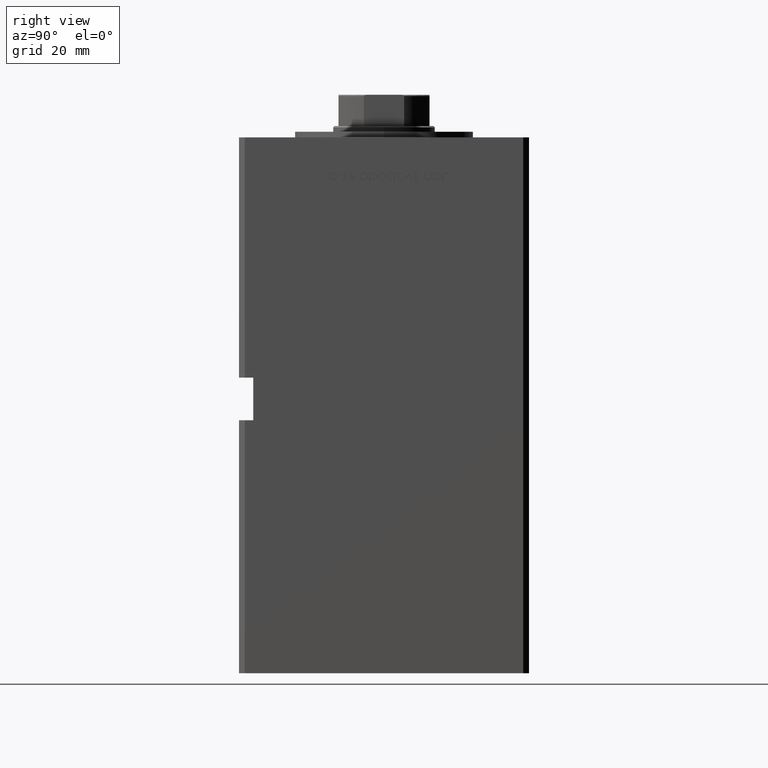
[diagram: clean part render]
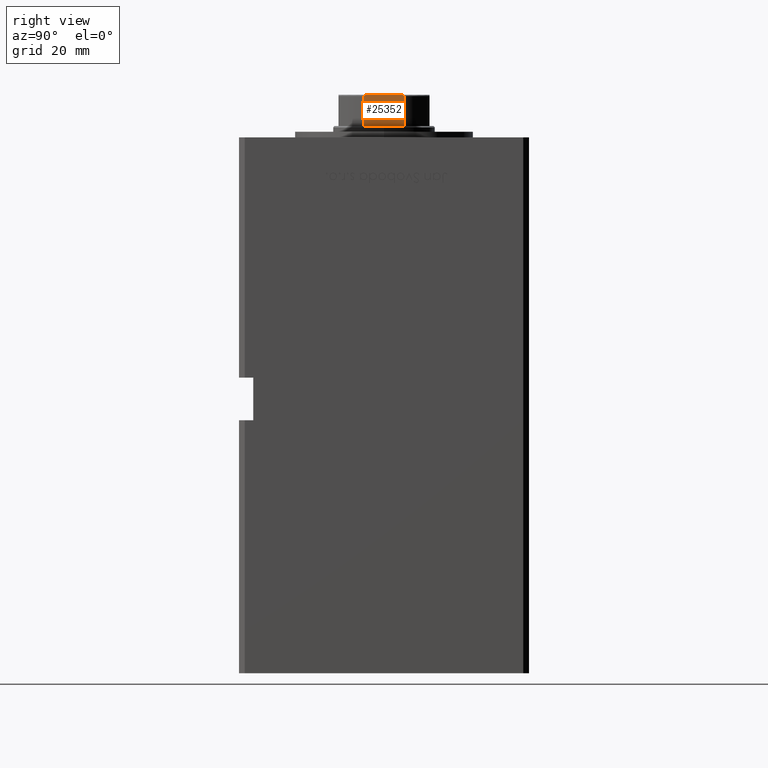
[diagram: same view with one face highlighted and labeled with its STEP entity id]
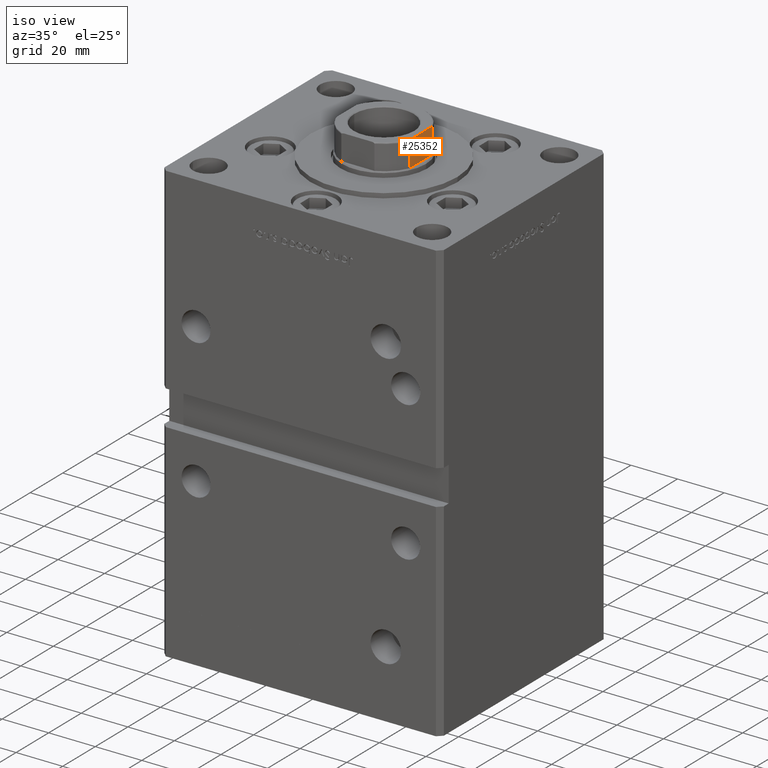
[diagram: same view with one face highlighted and labeled with its STEP entity id]
A machine part, right view. The second image highlights one B-rep face of the part: STEP entity #25352.
A second angle (iso view) of the same face is appended — the face is thin or edge-on in the first view.
In plain terms, the highlighted planar face has unit normal (-1, -0, 0).
Its self-contained STEP definition (entity closure, byte-faithful):
#444 = CARTESIAN_POINT ( 'NONE',  ( 16.00000000000000000, 16.00000000000000000, 169.2500000000000000 ) ) ;
#913 = CARTESIAN_POINT ( 'NONE',  ( 15.99999999999999645, 6.623467753754349374, 169.1410978819201318 ) ) ;
#1323 = CARTESIAN_POINT ( 'NONE',  ( 16.00000000000000355, -6.967626683430014012, 168.9712986014228591 ) ) ;
#1441 = CARTESIAN_POINT ( 'NONE',  ( 16.00000000000000000, 7.088723439378916247, 168.8153596029795551 ) ) ;
#1583 = CARTESIAN_POINT ( 'NONE',  ( 16.00000000000000355, -6.620608993398004571, 169.1419184437073113 ) ) ;
#1762 = EDGE_CURVE ( 'NONE', #50678, #18833, #29376, .T. ) ;
#4973 = EDGE_CURVE ( 'NONE', #14268, #44198, #51416, .T. ) ;
#5981 = CARTESIAN_POINT ( 'NONE',  ( 16.00000000000000000, 6.746962372739933045, 169.1011068297690088 ) ) ;
#5984 = CARTESIAN_POINT ( 'NONE',  ( 16.00000000000000000, 7.088723439378916247, 168.7500000000000000 ) ) ;
#7302 = DIRECTION ( 'NONE',  ( -0.000000000000000000, -0.000000000000000000, 1.000000000000000000 ) ) ;
#8485 = DIRECTION ( 'NONE',  ( -1.000000000000000000, -1.084202172485504557E-16, 0.000000000000000000 ) ) ;
#8768 = DIRECTION ( 'NONE',  ( -1.084202172485504434E-16, 1.000000000000000000, -0.000000000000000000 ) ) ;
#9163 = EDGE_CURVE ( 'NONE', #50678, #44198, #11385, .T. ) ;
#9900 = CARTESIAN_POINT ( 'NONE',  ( 15.99999999999999645, -5.999698100840000770, 169.2500000000000000 ) ) ;
#10431 = CARTESIAN_POINT ( 'NONE',  ( 16.00000000000000355, -6.744478600285194858, 169.1022542963852970 ) ) ;
#11385 = LINE ( 'NONE', #35525, #29125 ) ;
#11609 = VECTOR ( 'NONE', #7302, 1000.000000000000000 ) ;
#12503 = DIRECTION ( 'NONE',  ( 1.084202172485504557E-16, -1.000000000000000000, 0.000000000000000000 ) ) ;
#13213 = AXIS2_PLACEMENT_3D ( 'NONE', #444, #8485, #12503 ) ;
#14268 = VERTEX_POINT ( 'NONE', #44829 ) ;
#14911 = VERTEX_POINT ( 'NONE', #5984 ) ;
#15286 = LINE ( 'NONE', #43979, #37520 ) ;
#17775 = CARTESIAN_POINT ( 'NONE',  ( 16.00000000000000000, 7.055665994487715587, 168.8756422470904397 ) ) ;
#18304 = CARTESIAN_POINT ( 'NONE',  ( 16.00000000000000000, 5.744562646538033945, 169.2500000000000000 ) ) ;
#18450 = CARTESIAN_POINT ( 'NONE',  ( 16.00000000000000000, -6.251780714621279600, 169.2305079891187347 ) ) ;
#18833 = VERTEX_POINT ( 'NONE', #26029 ) ;
#19093 = LINE ( 'NONE', #52082, #11609 ) ;
#21940 = EDGE_LOOP ( 'NONE', ( #42662, #23522, #39588, #40915, #37420, #31175 ) ) ;
#22157 = CARTESIAN_POINT ( 'NONE',  ( 15.99999999999999645, -7.088723439378925129, 158.2500000000000284 ) ) ;
#22317 = CARTESIAN_POINT ( 'NONE',  ( 16.00000000000000000, 6.252433022027813259, 169.2306157152108312 ) ) ;
#22679 = EDGE_CURVE ( 'NONE', #14911, #31386, #44378, .T. ) ;
#23522 = ORIENTED_EDGE ( 'NONE', *, *, #4973, .T. ) ;
#24012 = PLANE ( 'NONE',  #13213 ) ;
#24104 = CARTESIAN_POINT ( 'NONE',  ( 15.99999999999999645, -7.088723439378925129, 168.7500000000000000 ) ) ;
#25047 = CARTESIAN_POINT ( 'NONE',  ( 16.00000000000000000, 5.744562646538033945, 169.2500000000000000 ) ) ;
#25352 = ADVANCED_FACE ( 'NONE', ( #27767 ), #24012, .F. ) ;
#26029 = CARTESIAN_POINT ( 'NONE',  ( 16.00000000000000000, 7.088723439378916247, 158.2500000000000284 ) ) ;
#27599 = DIRECTION ( 'NONE',  ( -1.084202172485504434E-16, 1.000000000000000000, -0.000000000000000000 ) ) ;
#27767 = FACE_OUTER_BOUND ( 'NONE', #21940, .T. ) ;
#29125 = VECTOR ( 'NONE', #40319, 1000.000000000000000 ) ;
#29376 = LINE ( 'NONE', #29636, #51850 ) ;
#29489 = EDGE_CURVE ( 'NONE', #18833, #14911, #19093, .T. ) ;
#29636 = CARTESIAN_POINT ( 'NONE',  ( 16.00000000000000000, 16.00000000000000000, 158.2500000000000000 ) ) ;
#31175 = ORIENTED_EDGE ( 'NONE', *, *, #22679, .T. ) ;
#31386 = VERTEX_POINT ( 'NONE', #25047 ) ;
#33777 = CARTESIAN_POINT ( 'NONE',  ( 16.00000000000000355, -7.088723439378910918, 168.8155697653146774 ) ) ;
#33888 = CARTESIAN_POINT ( 'NONE',  ( 16.00000000000000000, 7.088723439378916247, 168.7500000000000000 ) ) ;
#34032 = CARTESIAN_POINT ( 'NONE',  ( 16.00000000000000355, -5.744562646538033057, 169.2500000000000000 ) ) ;
#34829 = CARTESIAN_POINT ( 'NONE',  ( 16.00000000000000355, -6.914158745692618346, 169.0081288012991649 ) ) ;
#35525 = CARTESIAN_POINT ( 'NONE',  ( 15.99999999999999645, -7.088723439378925129, -0.001000000000001000089 ) ) ;
#37420 = ORIENTED_EDGE ( 'NONE', *, *, #29489, .T. ) ;
#37520 = VECTOR ( 'NONE', #27599, 1000.000000000000000 ) ;
#37637 = CARTESIAN_POINT ( 'NONE',  ( 16.00000000000000000, 6.968475375953128825, 168.9705009019615147 ) ) ;
#38700 = CARTESIAN_POINT ( 'NONE',  ( 15.99999999999999645, 5.999773414835116725, 169.2499999999999432 ) ) ;
#39588 = ORIENTED_EDGE ( 'NONE', *, *, #9163, .F. ) ;
#40319 = DIRECTION ( 'NONE',  ( -0.000000000000000000, -0.000000000000000000, 1.000000000000000000 ) ) ;
#40915 = ORIENTED_EDGE ( 'NONE', *, *, #1762, .T. ) ;
#42455 = CARTESIAN_POINT ( 'NONE',  ( 16.00000000000000355, 6.914772706552266612, 169.0076711345670901 ) ) ;
#42662 = ORIENTED_EDGE ( 'NONE', *, *, #45242, .F. ) ;
#43979 = CARTESIAN_POINT ( 'NONE',  ( 16.00000000000000000, 16.00000000000000000, 169.2500000000000000 ) ) ;
#44198 = VERTEX_POINT ( 'NONE', #24104 ) ;
#44378 = B_SPLINE_CURVE_WITH_KNOTS ( 'NONE', 3,
 ( #33888, #1441, #17775, #37637, #42455, #5981, #913, #22317, #38700, #18304 ),
 .UNSPECIFIED., .F., .F.,
 ( 4, 2, 2, 2, 4 ),
 ( 0.000000000000000000, 0.0001928955851489644411, 0.0003857911702979288822, 0.0007715823405958169984, 0.001543164681191573715 ),
 .UNSPECIFIED. ) ;
#44829 = CARTESIAN_POINT ( 'NONE',  ( 16.00000000000000355, -5.744562646538033057, 169.2500000000000000 ) ) ;
#45242 = EDGE_CURVE ( 'NONE', #14268, #31386, #15286, .T. ) ;
#46894 = CARTESIAN_POINT ( 'NONE',  ( 15.99999999999999645, -7.088723439378925129, 168.7500000000000000 ) ) ;
#50646 = CARTESIAN_POINT ( 'NONE',  ( 16.00000000000000355, -7.055793701721079891, 168.8756279161197824 ) ) ;
#50678 = VERTEX_POINT ( 'NONE', #22157 ) ;
#51416 = B_SPLINE_CURVE_WITH_KNOTS ( 'NONE', 3,
 ( #34032, #9900, #18450, #1583, #10431, #34829, #1323, #50646, #33777, #46894 ),
 .UNSPECIFIED., .F., .F.,
 ( 4, 2, 2, 2, 4 ),
 ( 8.673617379884035472E-19, 0.0007561879621635830351, 0.001134281943245383931, 0.001323328933786263508, 0.001512375924327143085 ),
 .UNSPECIFIED. ) ;
#51850 = VECTOR ( 'NONE', #8768, 1000.000000000000000 ) ;
#52082 = CARTESIAN_POINT ( 'NONE',  ( 16.00000000000000000, 7.088723439378916247, -0.001000000000001000089 ) ) ;